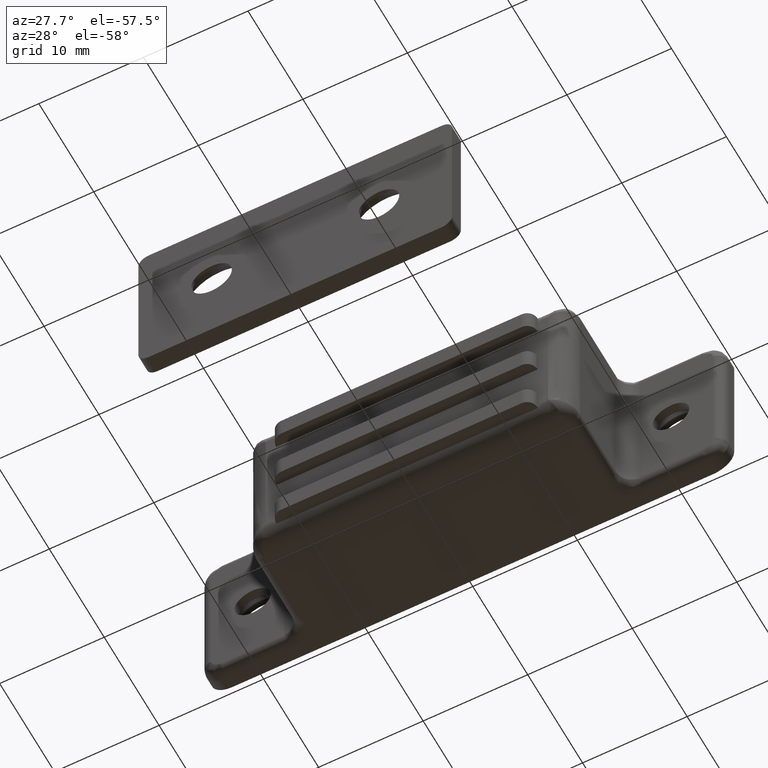
[diagram: clean part render]
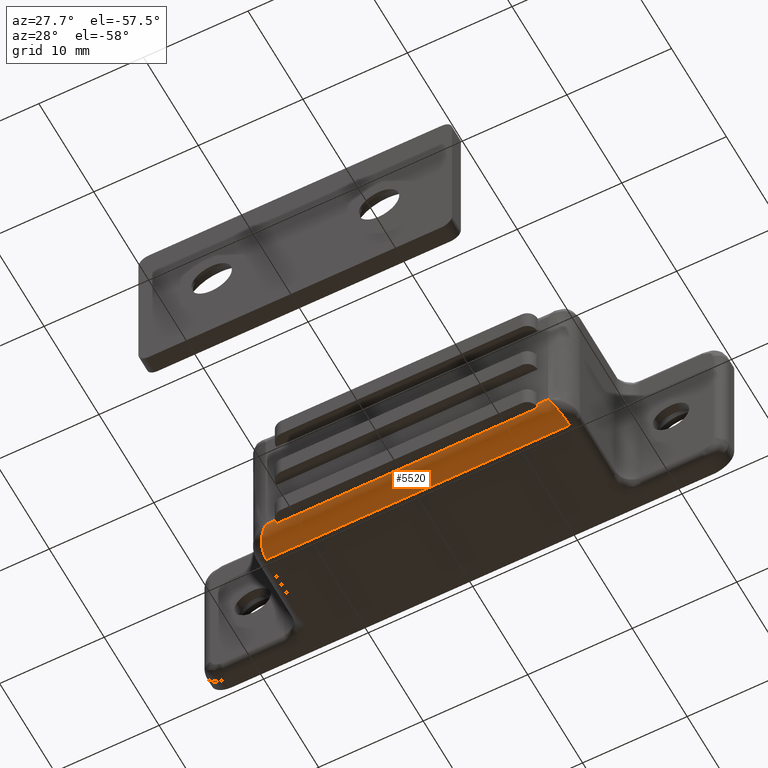
[diagram: same view with one face highlighted and labeled with its STEP entity id]
A machine part, auxiliary view. The second image highlights one B-rep face of the part: STEP entity #5520.
In plain terms, the highlighted face is a freeform B-spline surface patch.
Its self-contained STEP definition (entity closure, byte-faithful):
#2113=CARTESIAN_POINT('',(12.500000000000000,-11.936491673103600,-7.0));
#2114=VERTEX_POINT('',#2113);
#2115=CARTESIAN_POINT('',(12.500000000000000,-12.0,-6.500000000000000));
#2116=VERTEX_POINT('',#2115);
#2117=CARTESIAN_POINT('',(12.500000000000000,-11.936491673103600,-7.0));
#2118=CARTESIAN_POINT('',(12.499999999999996,-11.999999999999998,-6.754033307585180));
#2119=CARTESIAN_POINT('',(12.500000000000000,-12.0,-6.500000000000000));
#2127=(BOUNDED_CURVE()B_SPLINE_CURVE(2,(#2117,#2118,#2119),.UNSPECIFIED.,.F.,.U.)CURVE()GEOMETRIC_REPRESENTATION_ITEM()QUASI_UNIFORM_CURVE()RATIONAL_B_SPLINE_CURVE((1.0,0.992029696267166,1.0))REPRESENTATION_ITEM(''));
#2128=EDGE_CURVE('',#2114,#2116,#2127,.T.);
#2179=CARTESIAN_POINT('',(-12.500004000000001,-12.0,-6.500000000000000));
#2180=VERTEX_POINT('',#2179);
#2181=CARTESIAN_POINT('',(-12.500004000000001,-11.936491673103619,-7.0));
#2182=VERTEX_POINT('',#2181);
#2183=CARTESIAN_POINT('',(-12.500004000000001,-12.0,-6.500000000000000));
#2184=CARTESIAN_POINT('',(-12.500003999999999,-11.999999999999998,-6.754033307585178));
#2185=CARTESIAN_POINT('',(-12.500004000000001,-11.936491673103619,-7.0));
#2193=(BOUNDED_CURVE()B_SPLINE_CURVE(2,(#2183,#2184,#2185),.UNSPECIFIED.,.F.,.U.)CURVE()GEOMETRIC_REPRESENTATION_ITEM()QUASI_UNIFORM_CURVE()RATIONAL_B_SPLINE_CURVE((1.0,0.992029696267166,1.0))REPRESENTATION_ITEM(''));
#2194=EDGE_CURVE('',#2180,#2182,#2193,.T.);
#2265=CARTESIAN_POINT('',(-12.500004000000001,-11.936491673103619,-7.0));
#2266=CARTESIAN_POINT('',(12.500000000000000,-11.936491673103600,-7.0));
#2267=QUASI_UNIFORM_CURVE('',1,(#2265,#2266),.UNSPECIFIED.,.F.,.U.);
#2268=EDGE_CURVE('',#2182,#2114,#2267,.T.);
#4444=CARTESIAN_POINT('',(14.500000000000000,-10.0,-8.500000000000000));
#4445=VERTEX_POINT('',#4444);
#4587=CARTESIAN_POINT('',(13.500000000000000,-12.0,-6.500000000000000));
#4588=VERTEX_POINT('',#4587);
#4602=CARTESIAN_POINT('',(14.500000000000000,-10.0,-8.500000000000000));
#4603=CARTESIAN_POINT('',(14.499999999999996,-12.0,-8.500000000000000));
#4604=CARTESIAN_POINT('',(13.500000000000000,-12.0,-6.500000000000000));
#4612=(BOUNDED_CURVE()B_SPLINE_CURVE(2,(#4602,#4603,#4604),.UNSPECIFIED.,.F.,.U.)CURVE()GEOMETRIC_REPRESENTATION_ITEM()QUASI_UNIFORM_CURVE()RATIONAL_B_SPLINE_CURVE((1.0,0.707106781186548,1.0))REPRESENTATION_ITEM(''));
#4613=EDGE_CURVE('',#4445,#4588,#4612,.T.);
#5342=CARTESIAN_POINT('',(-14.500004000000001,-10.0,-8.500000000000000));
#5343=VERTEX_POINT('',#5342);
#5423=CARTESIAN_POINT('',(-13.500004000000001,-12.0,-6.500000000000000));
#5424=VERTEX_POINT('',#5423);
#5425=CARTESIAN_POINT('',(-13.500004000000001,-12.0,-6.500000000000000));
#5426=CARTESIAN_POINT('',(-14.500004000000002,-12.0,-8.500000000000000));
#5427=CARTESIAN_POINT('',(-14.500004000000001,-10.0,-8.500000000000000));
#5435=(BOUNDED_CURVE()B_SPLINE_CURVE(2,(#5425,#5426,#5427),.UNSPECIFIED.,.F.,.U.)CURVE()GEOMETRIC_REPRESENTATION_ITEM()QUASI_UNIFORM_CURVE()RATIONAL_B_SPLINE_CURVE((1.0,0.707106781186547,1.0))REPRESENTATION_ITEM(''));
#5436=EDGE_CURVE('',#5424,#5343,#5435,.T.);
#5484=CARTESIAN_POINT('',(-15.225004100000000,-9.947646103384253,-8.499314649951113));
#5485=CARTESIAN_POINT('',(15.243125102500001,-9.947646103384253,-8.499314649951113));
#5486=CARTESIAN_POINT('',(-15.225004099999996,-12.149969601109435,-8.556984520332524));
#5487=CARTESIAN_POINT('',(15.243125102499999,-12.149969601109435,-8.556984520332524));
#5488=CARTESIAN_POINT('',(-15.225004100000001,-11.995048958761622,-6.359359848748036));
#5489=CARTESIAN_POINT('',(15.243125102500006,-11.995048958761622,-6.359359848748036));
#5497=(BOUNDED_SURFACE()B_SPLINE_SURFACE(1,2,((#5484,#5486,#5488),(#5485,#5487,#5489)),.UNSPECIFIED.,.F.,.F.,.U.)B_SPLINE_SURFACE_WITH_KNOTS((2,2),(3,3),(0.0,30.468129202500009),(0.0,3.542284688176722),.UNSPECIFIED.)GEOMETRIC_REPRESENTATION_ITEM()RATIONAL_B_SPLINE_SURFACE(((1.0,0.670944223154768,0.996392648609106),(1.0,0.670944223154768,0.996392648609106)))REPRESENTATION_ITEM('')SURFACE());
#5498=ORIENTED_EDGE('',*,*,#2194,.F.);
#5499=CARTESIAN_POINT('',(-13.500004000000001,-12.0,-6.500000000000000));
#5500=CARTESIAN_POINT('',(-12.500004000000001,-12.0,-6.500000000000000));
#5501=QUASI_UNIFORM_CURVE('',1,(#5499,#5500),.UNSPECIFIED.,.F.,.U.);
#5502=EDGE_CURVE('',#5424,#2180,#5501,.T.);
#5503=ORIENTED_EDGE('',*,*,#5502,.F.);
#5504=ORIENTED_EDGE('',*,*,#5436,.T.);
#5505=CARTESIAN_POINT('',(14.500000000000000,-10.0,-8.500000000000000));
#5506=CARTESIAN_POINT('',(-14.500004000000001,-10.0,-8.500000000000000));
#5507=QUASI_UNIFORM_CURVE('',1,(#5505,#5506),.UNSPECIFIED.,.F.,.U.);
#5508=EDGE_CURVE('',#4445,#5343,#5507,.T.);
#5509=ORIENTED_EDGE('',*,*,#5508,.F.);
#5510=ORIENTED_EDGE('',*,*,#4613,.T.);
#5511=CARTESIAN_POINT('',(12.500000000000000,-12.0,-6.500000000000000));
#5512=CARTESIAN_POINT('',(13.500000000000000,-12.0,-6.500000000000000));
#5513=QUASI_UNIFORM_CURVE('',1,(#5511,#5512),.UNSPECIFIED.,.F.,.U.);
#5514=EDGE_CURVE('',#2116,#4588,#5513,.T.);
#5515=ORIENTED_EDGE('',*,*,#5514,.F.);
#5516=ORIENTED_EDGE('',*,*,#2128,.F.);
#5517=ORIENTED_EDGE('',*,*,#2268,.F.);
#5518=EDGE_LOOP('',(#5498,#5503,#5504,#5509,#5510,#5515,#5516,#5517));
#5519=FACE_OUTER_BOUND('',#5518,.T.);
#5520=ADVANCED_FACE('',(#5519),#5497,.T.);